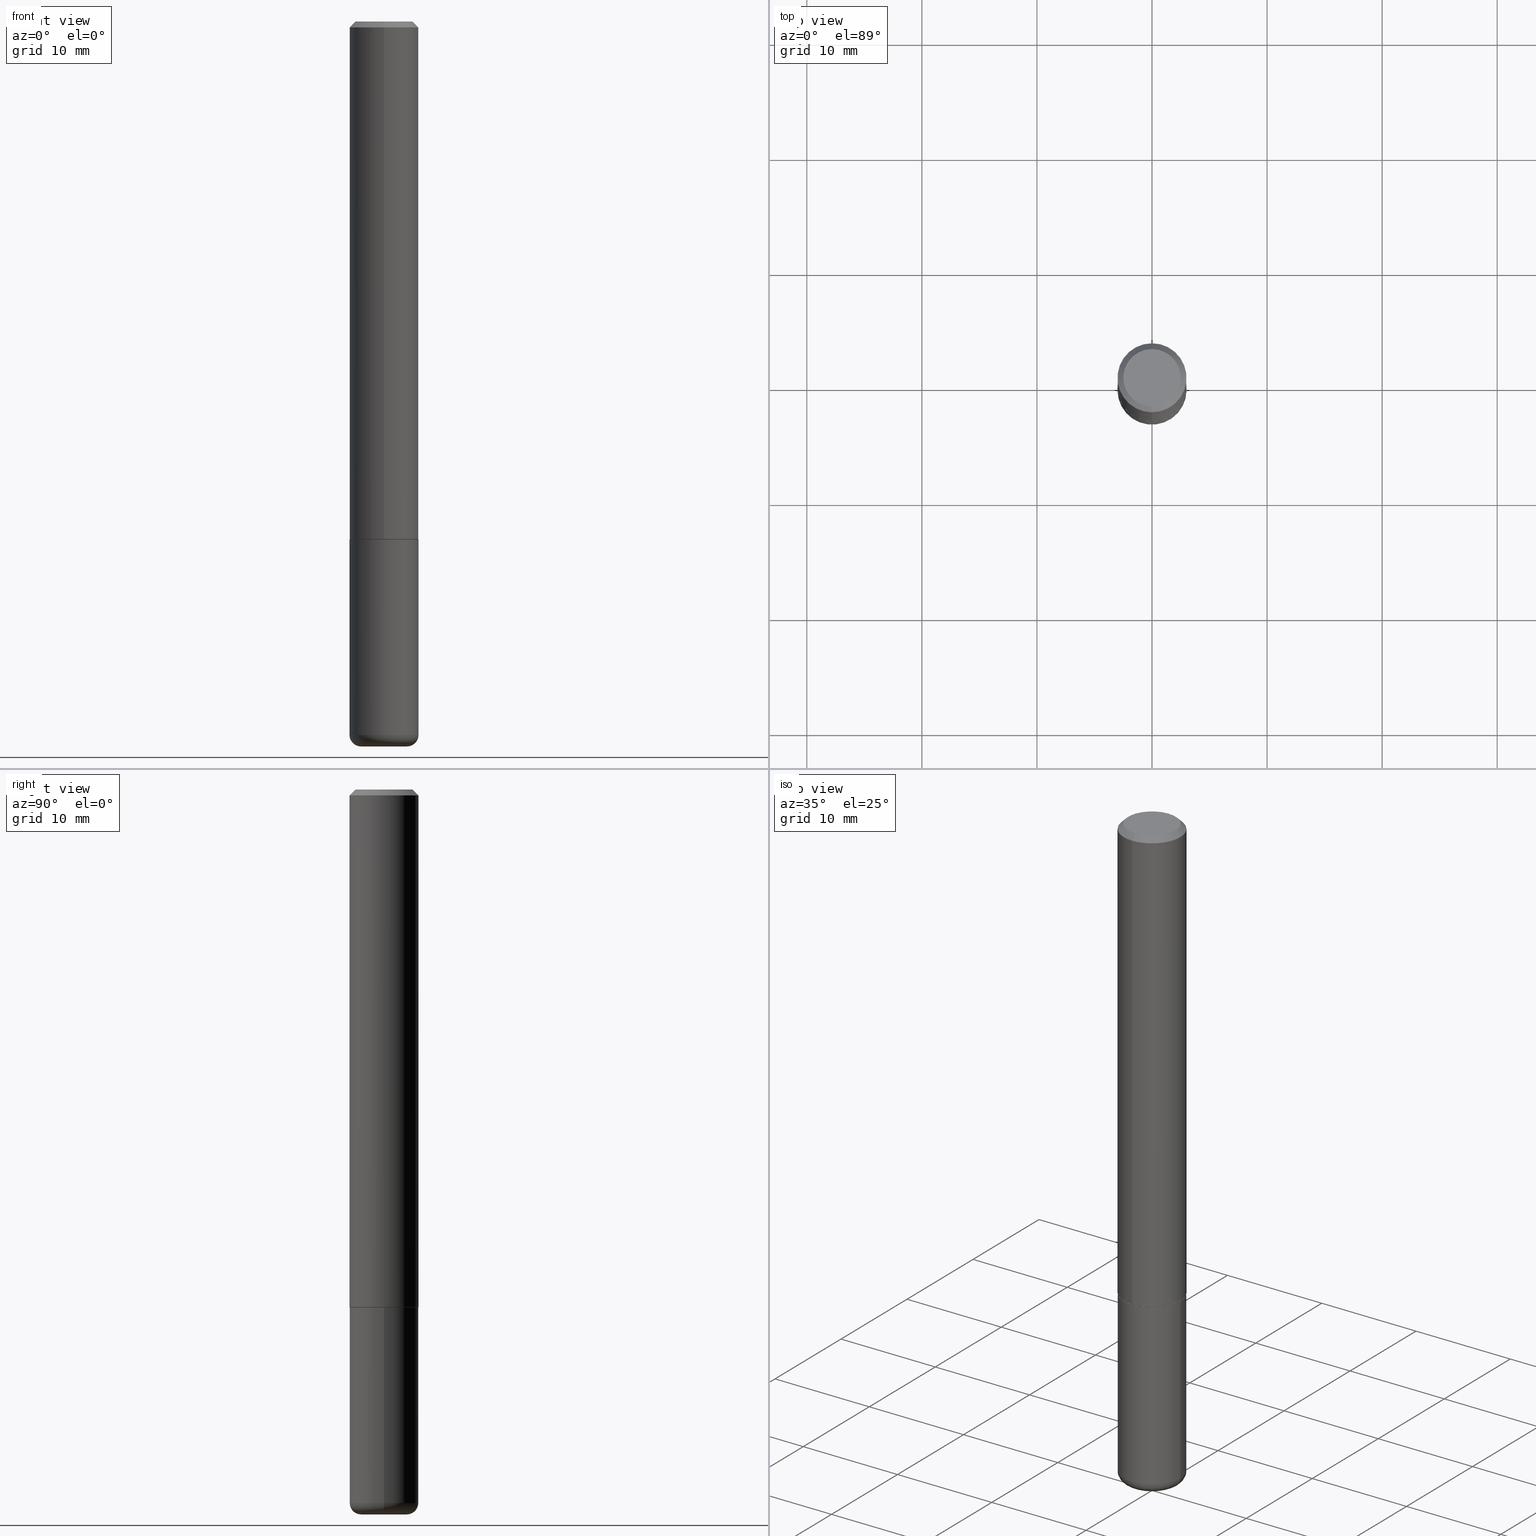
[diagram: canonical four-view strip — front | top / right | iso, engineering-drawing reading convention]
A machine part, canonical four-view strip (front | top / right | iso — engineering-drawing reading convention). The complete STEP part file that produces these views, byte-faithful:
ISO-10303-21;
HEADER;
FILE_DESCRIPTION (( 'STEP AP203' ),
    '1' );
FILE_NAME ('47488.STEP',
    '2024-03-06T02:38:55',
    ( '' ),
    ( '' ),
    'SwSTEP 2.0',
    'SolidWorks 2023',
    '' );
FILE_SCHEMA (( 'CONFIG_CONTROL_DESIGN' ));
ENDSEC;

DATA;
#1 = FACE_OUTER_BOUND ( 'NONE', #196, .T. ) ;
#2 = DIRECTION ( 'NONE',  ( -2.445468806185136597E-29, 3.491481338843145583E-15, 1.000000000000000000 ) ) ;
#3 = VERTEX_POINT ( 'NONE', #37 ) ;
#4 = CALENDAR_DATE ( 2024, 5, 3 ) ;
#5 = AXIS2_PLACEMENT_3D ( 'NONE', #184, #219, #373 ) ;
#6 = ORIENTED_EDGE ( 'NONE', *, *, #379, .F. ) ;
#7 = ADVANCED_FACE ( 'NONE', ( #294 ), #54, .T. ) ;
#8 = DIRECTION ( 'NONE',  ( -6.982962677686265922E-15, -1.000000000000000000, 2.332918867347791121E-15 ) ) ;
#9 = COORDINATED_UNIVERSAL_TIME_OFFSET ( 5, 0, .BEHIND. ) ;
#10 = CARTESIAN_POINT ( 'NONE',  ( 8.391509709327014685E-16, 0.1180999999999940708, -1.770600000000000840 ) ) ;
#11 = ORIENTED_EDGE ( 'NONE', *, *, #58, .T. ) ;
#12 = COORDINATED_UNIVERSAL_TIME_OFFSET ( 5, 0, .BEHIND. ) ;
#13 = UNCERTAINTY_MEASURE_WITH_UNIT (LENGTH_MEASURE( 1.000000000000000082E-05 ), #346, 'distance_accuracy_value', 'NONE');
#14 = CARTESIAN_POINT ( 'NONE',  ( 6.850286386810209760E-16, 0.09809999999999975684, -2.124813316387448711E-16 ) ) ;
#15 = ADVANCED_FACE ( 'NONE', ( #1 ), #144, .F. ) ;
#16 = AXIS2_PLACEMENT_3D ( 'NONE', #50, #158, #155 ) ;
#17 = CALENDAR_DATE ( 2024, 5, 3 ) ;
#18 = CARTESIAN_POINT ( 'NONE',  ( 7.548582654578847672E-16, 0.09809999999999975684, -8.213505744438662948E-17 ) ) ;
#19 = CARTESIAN_POINT ( 'NONE',  ( -0.07870000000000000606, -7.963159666939035753E-15, -2.440900000000000070 ) ) ;
#20 = DIRECTION ( 'NONE',  ( 6.982962677686265922E-15, 1.000000000000000000, -3.494674881071397310E-15 ) ) ;
#21 = DIRECTION ( 'NONE',  ( 1.000000000000000000, -6.982962677686269077E-15, 0.000000000000000000 ) ) ;
#22 = ADVANCED_FACE ( 'NONE', ( #110 ), #233, .F. ) ;
#23 = CARTESIAN_POINT ( 'NONE',  ( 8.246878922347484598E-16, 0.1180999999999999273, -0.02000000000000045838 ) ) ;
#24 = CIRCLE ( 'NONE', #5, 0.1180999999999999966 ) ;
#25 = DIRECTION ( 'NONE',  ( -2.443238767566187138E-29, 3.494674881071396916E-15, 1.000000000000000000 ) ) ;
#26 = DIRECTION ( 'NONE',  ( -2.443238767566187138E-29, 3.494674881071397310E-15, 1.000000000000000000 ) ) ;
#27 = ORIENTED_EDGE ( 'NONE', *, *, #284, .F. ) ;
#28 = CC_DESIGN_APPROVAL ( #49, ( #333 ) ) ;
#29 = ORIENTED_EDGE ( 'NONE', *, *, #295, .T. ) ;
#30 = EDGE_LOOP ( 'NONE', ( #163, #59, #381, #34 ) ) ;
#31 = ADVANCED_FACE ( 'NONE', ( #40 ), #182, .T. ) ;
#32 = VECTOR ( 'NONE', #76, 39.37007874015748143 ) ;
#33 = CIRCLE ( 'NONE', #166, 0.03940000000000005997 ) ;
#34 = ORIENTED_EDGE ( 'NONE', *, *, #374, .F. ) ;
#35 = ORIENTED_EDGE ( 'NONE', *, *, #352, .F. ) ;
#36 = DATE_AND_TIME ( #77, #212 ) ;
#37 = CARTESIAN_POINT ( 'NONE',  ( -8.102248135368172434E-16, -0.1181000000000000660, -0.01999999999999962919 ) ) ;
#38 = EDGE_CURVE ( 'NONE', #99, #292, #113, .T. ) ;
#39 = CIRCLE ( 'NONE', #106, 0.1180999999999999966 ) ;
#40 = FACE_OUTER_BOUND ( 'NONE', #30, .T. ) ;
#41 = CYLINDRICAL_SURFACE ( 'NONE', #141, 0.1180999999999999966 ) ;
#42 = CARTESIAN_POINT ( 'NONE',  ( 6.065496279980994755E-29, -8.659921164732655335E-15, -2.480300000000000171 ) ) ;
#43 = DIRECTION ( 'NONE',  ( -6.982962677686266711E-15, -1.000000000000000000, 3.491481338843145583E-15 ) ) ;
#44 = DIRECTION ( 'NONE',  ( -1.000000000000000000, 7.105427357600990815E-15, 0.000000000000000000 ) ) ;
#45 = DIRECTION ( 'NONE',  ( -6.982962677686265922E-15, -1.000000000000000000, 2.332918867347791121E-15 ) ) ;
#46 = VECTOR ( 'NONE', #121, 39.37007874015748143 ) ;
#47 = FACE_OUTER_BOUND ( 'NONE', #393, .T. ) ;
#48 = CARTESIAN_POINT ( 'NONE',  ( 6.065496279980994755E-29, -8.659921164732655335E-15, -2.480300000000000171 ) ) ;
#49 = APPROVAL ( #319, 'UNSPECIFIED' ) ;
#50 = CARTESIAN_POINT ( 'NONE',  ( 4.325998561852691348E-29, -6.187671344425017014E-15, -1.770600000000000174 ) ) ;
#51 = CARTESIAN_POINT ( 'NONE',  ( -8.102248135368172434E-16, -0.1181000000000000660, -0.01999999999999962919 ) ) ;
#52 = DIRECTION ( 'NONE',  ( 2.438088387897960049E-29, -3.491481338843145188E-15, -1.000000000000000000 ) ) ;
#53 = PERSON_AND_ORGANIZATION ( #380, #237 ) ;
#54 = CONICAL_SURFACE ( 'NONE', #173, 0.1170999999999999958, 0.7853981633975336552 ) ;
#55 = AXIS2_PLACEMENT_3D ( 'NONE', #79, #2, #392 ) ;
#56 = LINE ( 'NONE', #23, #223 ) ;
#57 = CARTESIAN_POINT ( 'NONE',  ( 5.969144809017300159E-29, -8.522356799982234543E-15, -2.440900000000000070 ) ) ;
#58 = EDGE_CURVE ( 'NONE', #283, #254, #357, .T. ) ;
#59 = ORIENTED_EDGE ( 'NONE', *, *, #259, .T. ) ;
#60 = AXIS2_PLACEMENT_3D ( 'NONE', #202, #262, #322 ) ;
#61 = CONICAL_SURFACE ( 'NONE', #197, 0.1180999999999999966, 0.7853981633974469467 ) ;
#62 = ORIENTED_EDGE ( 'NONE', *, *, #105, .T. ) ;
#63 = EDGE_CURVE ( 'NONE', #254, #138, #267, .T. ) ;
#64 = ORIENTED_EDGE ( 'NONE', *, *, #259, .F. ) ;
#65 = DIRECTION ( 'NONE',  ( 0.000000000000000000, 0.000000000000000000, 1.000000000000000000 ) ) ;
#66 = AXIS2_PLACEMENT_3D ( 'NONE', #302, #337, #365 ) ;
#67 = ORIENTED_EDGE ( 'NONE', *, *, #58, .F. ) ;
#68 = APPLICATION_PROTOCOL_DEFINITION ( 'international standard', 'config_control_design', 1994, #83 ) ;
#69 = CC_DESIGN_PERSON_AND_ORGANIZATION_ASSIGNMENT ( #137, #349, ( #263 ) ) ;
#70 = ORIENTED_EDGE ( 'NONE', *, *, #38, .T. ) ;
#71 = DATE_TIME_ROLE ( 'creation_date' ) ;
#72 = ORIENTED_EDGE ( 'NONE', *, *, #129, .T. ) ;
#73 = DIRECTION ( 'NONE',  ( -2.445468806185136597E-29, 3.491481338843145583E-15, 1.000000000000000000 ) ) ;
#74 = CLOSED_SHELL ( 'NONE', ( #7, #317, #31, #345, #132, #98, #22, #253 ) ) ;
#75 = CC_DESIGN_APPROVAL ( #159, ( #277 ) ) ;
#76 = DIRECTION ( 'NONE',  ( -2.445468806185136877E-29, 3.491481338843145188E-15, 1.000000000000000000 ) ) ;
#77 = CALENDAR_DATE ( 2024, 5, 3 ) ;
#78 = PRODUCT_RELATED_PRODUCT_CATEGORY ( 'detail', '', ( #263 ) ) ;
#79 = CARTESIAN_POINT ( 'NONE',  ( 0.000000000000000000, 0.000000000000000000, 0.000000000000000000 ) ) ;
#80 = ORIENTED_EDGE ( 'NONE', *, *, #364, .F. ) ;
#81 = CALENDAR_DATE ( 2024, 5, 3 ) ;
#82 = DIRECTION ( 'NONE',  ( -2.443238767566187138E-29, 3.494674881071396916E-15, 1.000000000000000000 ) ) ;
#83 = APPLICATION_CONTEXT ( 'configuration controlled 3d designs of mechanical parts and assemblies' ) ;
#84 = CARTESIAN_POINT ( 'NONE',  ( -0.1180999999999999966, 8.391509709326782957E-16, -5.809262341591043784E-30 ) ) ;
#85 = APPROVAL_ROLE ( '' ) ;
#86 = CARTESIAN_POINT ( 'NONE',  ( 8.391509709326790846E-16, 0.1181000000000001215, -4.127211034545323724E-16 ) ) ;
#87 = CARTESIAN_POINT ( 'NONE',  ( 8.355982572539216720E-16, 0.1170999999999937924, -1.771600000000000508 ) ) ;
#88 = LOCAL_TIME ( 21, 38, 55.00000000000000000, #391 ) ;
#89 = CARTESIAN_POINT ( 'NONE',  ( 0.1180999999999999966, -7.010196232129265043E-15, -1.771600000000000286 ) ) ;
#90 = EDGE_CURVE ( 'NONE', #138, #418, #154, .T. ) ;
#91 = DIMENSIONAL_EXPONENTS ( 1.000000000000000000, 0.000000000000000000, 0.000000000000000000, 0.000000000000000000, 0.000000000000000000, 0.000000000000000000, 0.000000000000000000 ) ;
#92 = DATE_AND_TIME ( #214, #174 ) ;
#93 = DIRECTION ( 'NONE',  ( -6.982962677686265922E-15, -1.000000000000000000, 2.332918867347791121E-15 ) ) ;
#94 = VECTOR ( 'NONE', #151, 39.37007874015748143 ) ;
#95 = AXIS2_PLACEMENT_3D ( 'NONE', #408, #213, #128 ) ;
#96 = ADVANCED_FACE ( 'NONE', ( #180 ), #335, .T. ) ;
#97 = DIRECTION ( 'NONE',  ( -4.851104656540957175E-15, -0.7071067811865490160, -0.7071067811865460184 ) ) ;
#98 = ADVANCED_FACE ( 'NONE', ( #272 ), #148, .T. ) ;
#99 = VERTEX_POINT ( 'NONE', #270 ) ;
#100 = AXIS2_PLACEMENT_3D ( 'NONE', #175, #82, #261 ) ;
#101 = LOCAL_TIME ( 21, 38, 55.00000000000000000, #12 ) ;
#102 = VERTEX_POINT ( 'NONE', #366 ) ;
#103 = EDGE_LOOP ( 'NONE', ( #313, #255, #62, #285 ) ) ;
#104 = APPLICATION_PROTOCOL_DEFINITION ( 'international standard', 'config_control_design', 1994, #343 ) ;
#105 = EDGE_CURVE ( 'NONE', #161, #102, #156, .T. ) ;
#106 = AXIS2_PLACEMENT_3D ( 'NONE', #320, #181, #177 ) ;
#107 = CARTESIAN_POINT ( 'NONE',  ( 0.000000000000000000, 0.000000000000000000, 0.000000000000000000 ) ) ;
#108 = DIRECTION ( 'NONE',  ( 2.438088387897960049E-29, -3.491481338843145188E-15, -1.000000000000000000 ) ) ;
#109 = CARTESIAN_POINT ( 'NONE',  ( 6.065496279980994755E-29, -8.659921164732655335E-15, -2.480300000000000171 ) ) ;
#110 = FACE_OUTER_BOUND ( 'NONE', #328, .T. ) ;
#111 = CARTESIAN_POINT ( 'NONE',  ( -0.1181000000000000383, -7.683205829049555557E-15, -2.440900000000000070 ) ) ;
#112 = EDGE_CURVE ( 'NONE', #102, #3, #185, .T. ) ;
#113 = LINE ( 'NONE', #235, #32 ) ;
#114 = DIRECTION ( 'NONE',  ( 1.000000000000000000, -6.982962677686265133E-15, 0.000000000000000000 ) ) ;
#115 = AXIS2_PLACEMENT_3D ( 'NONE', #19, #248, #44 ) ;
#116 = CIRCLE ( 'NONE', #309, 0.1170999999999999958 ) ;
#117 = VERTEX_POINT ( 'NONE', #87 ) ;
#118 = COORDINATED_UNIVERSAL_TIME_OFFSET ( 5, 0, .BEHIND. ) ;
#119 = SHAPE_DEFINITION_REPRESENTATION ( #207, #133 ) ;
#120 = CARTESIAN_POINT ( 'NONE',  ( 4.886477535132384121E-31, -6.989349762142808870E-17, -0.02000000000000004205 ) ) ;
#121 = DIRECTION ( 'NONE',  ( -2.443238767566187138E-29, 3.494674881071397310E-15, 1.000000000000000000 ) ) ;
#122 = DIRECTION ( 'NONE',  ( -6.982962677686265922E-15, -1.000000000000000000, 3.494674881071397705E-15 ) ) ;
#123 = FACE_OUTER_BOUND ( 'NONE', #167, .T. ) ;
#124 = AXIS2_PLACEMENT_3D ( 'NONE', #310, #130, #122 ) ;
#125 = DATE_TIME_ROLE ( 'classification_date' ) ;
#126 = DIRECTION ( 'NONE',  ( 1.000000000000000000, -6.982962677686265133E-15, 0.000000000000000000 ) ) ;
#127 = PERSON_AND_ORGANIZATION ( #380, #237 ) ;
#128 = DIRECTION ( 'NONE',  ( -6.982962677686265922E-15, -1.000000000000000000, 3.494674881071396522E-15 ) ) ;
#129 = EDGE_CURVE ( 'NONE', #117, #165, #369, .T. ) ;
#130 = DIRECTION ( 'NONE',  ( -2.443238767566187138E-29, 3.494674881071396916E-15, 1.000000000000000000 ) ) ;
#131 = CIRCLE ( 'NONE', #124, 0.09809999999999975684 ) ;
#132 = ADVANCED_FACE ( 'NONE', ( #123 ), #200, .T. ) ;
#133 = ADVANCED_BREP_SHAPE_REPRESENTATION ( '47488', ( #400, #409, #282 ), #416 ) ;
#134 = EDGE_LOOP ( 'NONE', ( #206, #208, #239, #194 ) ) ;
#135 = AXIS2_PLACEMENT_3D ( 'NONE', #217, #338, #410 ) ;
#136 = EDGE_LOOP ( 'NONE', ( #67, #289 ) ) ;
#137 = PERSON_AND_ORGANIZATION ( #380, #237 ) ;
#138 = VERTEX_POINT ( 'NONE', #111 ) ;
#139 = ORIENTED_EDGE ( 'NONE', *, *, #105, .F. ) ;
#140 =( NAMED_UNIT ( * ) SI_UNIT ( $, .STERADIAN. ) SOLID_ANGLE_UNIT ( ) );
#141 = AXIS2_PLACEMENT_3D ( 'NONE', #107, #269, #363 ) ;
#142 = ORIENTED_EDGE ( 'NONE', *, *, #284, .T. ) ;
#143 = ADVANCED_FACE ( 'NONE', ( #355 ), #276, .T. ) ;
#144 = PLANE ( 'NONE',  #246 ) ;
#145 = APPROVAL_DATE_TIME ( #36, #49 ) ;
#146 = CARTESIAN_POINT ( 'NONE',  ( 4.328441800620257960E-29, -6.191166019306087880E-15, -1.771600000000000286 ) ) ;
#147 = DATE_AND_TIME ( #17, #101 ) ;
#148 = CONICAL_SURFACE ( 'NONE', #372, 0.1170999999999999958, 0.7853981633975336552 ) ;
#149 = CIRCLE ( 'NONE', #66, 0.1181000000000002326 ) ;
#150 = LINE ( 'NONE', #51, #286 ) ;
#151 = DIRECTION ( 'NONE',  ( -2.445468806185136877E-29, 3.491481338843145188E-15, 1.000000000000000000 ) ) ;
#152 = ADVANCED_FACE ( 'NONE', ( #388 ), #41, .T. ) ;
#153 = CARTESIAN_POINT ( 'NONE',  ( -7.416198335591014190E-16, -0.09809999999999975684, 6.035201542218197439E-16 ) ) ;
#154 = LINE ( 'NONE', #84, #94 ) ;
#155 = DIRECTION ( 'NONE',  ( -6.982962677686265922E-15, -1.000000000000000000, 4.626330217890360659E-15 ) ) ;
#156 = LINE ( 'NONE', #397, #228 ) ;
#157 = AXIS2_PLACEMENT_3D ( 'NONE', #109, #257, #210 ) ;
#158 = DIRECTION ( 'NONE',  ( -2.443238767566187138E-29, 3.494674881071396916E-15, 1.000000000000000000 ) ) ;
#159 = APPROVAL ( #266, 'UNSPECIFIED' ) ;
#160 = CARTESIAN_POINT ( 'NONE',  ( 8.246878922347484598E-16, 0.1180999999999999273, -0.02000000000000045838 ) ) ;
#161 = VERTEX_POINT ( 'NONE', #396 ) ;
#162 = CIRCLE ( 'NONE', #157, 0.07870000000000000606 ) ;
#163 = ORIENTED_EDGE ( 'NONE', *, *, #311, .F. ) ;
#164 = EDGE_CURVE ( 'NONE', #415, #3, #39, .T. ) ;
#165 = VERTEX_POINT ( 'NONE', #10 ) ;
#166 = AXIS2_PLACEMENT_3D ( 'NONE', #327, #43, #179 ) ;
#167 = EDGE_LOOP ( 'NONE', ( #27, #281, #342, #225 ) ) ;
#168 = EDGE_LOOP ( 'NONE', ( #353, #389 ) ) ;
#169 = PERSON_AND_ORGANIZATION ( #380, #237 ) ;
#170 = CARTESIAN_POINT ( 'NONE',  ( 5.969144809017300159E-29, -8.522356799982234543E-15, -2.440900000000000070 ) ) ;
#171 = ORIENTED_EDGE ( 'NONE', *, *, #280, .T. ) ;
#172 = ADVANCED_FACE ( 'NONE', ( #264 ), #296, .T. ) ;
#173 = AXIS2_PLACEMENT_3D ( 'NONE', #146, #288, #8 ) ;
#174 = LOCAL_TIME ( 21, 38, 55.00000000000000000, #304 ) ;
#175 = CARTESIAN_POINT ( 'NONE',  ( 0.000000000000000000, 0.000000000000000000, 0.000000000000000000 ) ) ;
#176 = DIRECTION ( 'NONE',  ( 2.443238767566187138E-29, -3.494674881071396916E-15, -1.000000000000000000 ) ) ;
#177 = DIRECTION ( 'NONE',  ( -6.982962677686265922E-15, -1.000000000000000000, 3.505890868245046092E-15 ) ) ;
#178 = ORIENTED_EDGE ( 'NONE', *, *, #187, .F. ) ;
#179 = DIRECTION ( 'NONE',  ( 1.000000000000000000, -6.982962677686267499E-15, 0.000000000000000000 ) ) ;
#180 = FACE_OUTER_BOUND ( 'NONE', #136, .T. ) ;
#181 = DIRECTION ( 'NONE',  ( -2.443238767566187138E-29, 3.494674881071396916E-15, 1.000000000000000000 ) ) ;
#182 = CONICAL_SURFACE ( 'NONE', #404, 0.1180999999999999966, 0.7853981633974469467 ) ;
#183 = EDGE_CURVE ( 'NONE', #254, #283, #162, .T. ) ;
#184 = CARTESIAN_POINT ( 'NONE',  ( 5.969144809017300159E-29, -8.522356799982234543E-15, -2.440900000000000070 ) ) ;
#185 = LINE ( 'NONE', #274, #46 ) ;
#186 = CARTESIAN_POINT ( 'NONE',  ( 0.07870000000000000606, -9.209480327466565169E-15, -2.480300000000000171 ) ) ;
#187 = EDGE_CURVE ( 'NONE', #292, #418, #339, .T. ) ;
#188 = DIRECTION ( 'NONE',  ( -2.445468806185136597E-29, 3.491481338843145583E-15, 1.000000000000000000 ) ) ;
#189 = PERSON_AND_ORGANIZATION ( #380, #237 ) ;
#190 = DIRECTION ( 'NONE',  ( 4.937700262164540942E-15, 0.7071067811865441310, -0.7071067811865509034 ) ) ;
#191 = ORIENTED_EDGE ( 'NONE', *, *, #112, .F. ) ;
#192 = CC_DESIGN_DATE_AND_TIME_ASSIGNMENT ( #147, #125, ( #277 ) ) ;
#193 = AXIS2_PLACEMENT_3D ( 'NONE', #406, #188, #126 ) ;
#194 = ORIENTED_EDGE ( 'NONE', *, *, #295, .F. ) ;
#195 = LENGTH_MEASURE_WITH_UNIT ( LENGTH_MEASURE( 0.02539999999999999897 ), #376 );
#196 = EDGE_LOOP ( 'NONE', ( #287, #260 ) ) ;
#197 = AXIS2_PLACEMENT_3D ( 'NONE', #120, #306, #402 ) ;
#198 = EDGE_LOOP ( 'NONE', ( #348, #29, #70, #411 ) ) ;
#199 = PERSON_AND_ORGANIZATION ( #380, #237 ) ;
#200 = CYLINDRICAL_SURFACE ( 'NONE', #100, 0.1181000000000001215 ) ;
#201 = EDGE_LOOP ( 'NONE', ( #171, #316, #178, #378 ) ) ;
#202 = CARTESIAN_POINT ( 'NONE',  ( 4.328441800620257960E-29, -6.191166019306087880E-15, -1.771600000000000286 ) ) ;
#203 = DIRECTION ( 'NONE',  ( 1.000000000000000000, 0.000000000000000000, 0.000000000000000000 ) ) ;
#204 = PRODUCT_DEFINITION_FORMATION_WITH_SPECIFIED_SOURCE ( 'ANY', '', #263, .NOT_KNOWN. ) ;
#205 = DIRECTION ( 'NONE',  ( 1.000000000000000000, -6.982962677686269077E-15, 4.883557194083113462E-29 ) ) ;
#206 = ORIENTED_EDGE ( 'NONE', *, *, #63, .F. ) ;
#207 = PRODUCT_DEFINITION_SHAPE ( 'NONE', 'NONE',  #333 ) ;
#208 = ORIENTED_EDGE ( 'NONE', *, *, #183, .T. ) ;
#209 = APPROVAL_DATE_TIME ( #245, #159 ) ;
#210 = DIRECTION ( 'NONE',  ( 1.000000000000000000, -6.982962677686269077E-15, 0.000000000000000000 ) ) ;
#211 = DIRECTION ( 'NONE',  ( 2.443238767566186578E-29, -3.494674881071397310E-15, -1.000000000000000000 ) ) ;
#212 = LOCAL_TIME ( 21, 38, 55.00000000000000000, #9 ) ;
#213 = DIRECTION ( 'NONE',  ( -2.443238767566187138E-29, 3.494674881071396916E-15, 1.000000000000000000 ) ) ;
#214 = CALENDAR_DATE ( 2024, 5, 3 ) ;
#215 = CYLINDRICAL_SURFACE ( 'NONE', #95, 0.1181000000000001215 ) ;
#216 = PERSON_AND_ORGANIZATION ( #380, #237 ) ;
#217 = CARTESIAN_POINT ( 'NONE',  ( 4.886477535132384121E-31, -6.989349762142808870E-17, -0.02000000000000004205 ) ) ;
#218 = AXIS2_PLACEMENT_3D ( 'NONE', #301, #278, #332 ) ;
#219 = DIRECTION ( 'NONE',  ( -2.445468806185136597E-29, 3.491481338843145583E-15, 1.000000000000000000 ) ) ;
#220 = EDGE_CURVE ( 'NONE', #161, #117, #116, .T. ) ;
#221 = AXIS2_PLACEMENT_3D ( 'NONE', #48, #52, #307 ) ;
#222 = ORIENTED_EDGE ( 'NONE', *, *, #352, .T. ) ;
#223 = VECTOR ( 'NONE', #190, 39.37007874015748143 ) ;
#224 = CC_DESIGN_PERSON_AND_ORGANIZATION_ASSIGNMENT ( #189, #330, ( #277 ) ) ;
#225 = ORIENTED_EDGE ( 'NONE', *, *, #164, .F. ) ;
#226 = CARTESIAN_POINT ( 'NONE',  ( 0.000000000000000000, 0.000000000000000000, 0.000000000000000000 ) ) ;
#227 = ORIENTED_EDGE ( 'NONE', *, *, #374, .T. ) ;
#228 = VECTOR ( 'NONE', #401, 39.37007874015748143 ) ;
#229 = CIRCLE ( 'NONE', #135, 0.1180999999999999966 ) ;
#230 = CARTESIAN_POINT ( 'NONE',  ( 4.328441800620257960E-29, -6.191166019306087880E-15, -1.771600000000000286 ) ) ;
#231 = DIRECTION ( 'NONE',  ( -1.000000000000000000, 6.982962677686265922E-15, -4.876176775795935793E-29 ) ) ;
#232 = EDGE_CURVE ( 'NONE', #283, #99, #33, .T. ) ;
#233 = PLANE ( 'NONE',  #60 ) ;
#234 = APPROVAL_ROLE ( '' ) ;
#235 = CARTESIAN_POINT ( 'NONE',  ( 0.1180999999999999966, -8.246878922347480654E-16, 5.758764772215000440E-30 ) ) ;
#236 = CLOSED_SHELL ( 'NONE', ( #172, #305, #15, #152, #143, #96 ) ) ;
#237 = ORGANIZATION ( 'UNSPECIFIED', 'UNSPECIFIED', '' ) ;
#238 = DIRECTION ( 'NONE',  ( -2.443238767566187138E-29, 3.494674881071396916E-15, 1.000000000000000000 ) ) ;
#239 = ORIENTED_EDGE ( 'NONE', *, *, #232, .T. ) ;
#240 = PERSON_AND_ORGANIZATION_ROLE ( 'design_supplier' ) ;
#241 = APPROVAL ( #249, 'UNSPECIFIED' ) ;
#242 = PERSON_AND_ORGANIZATION ( #380, #237 ) ;
#243 = FACE_OUTER_BOUND ( 'NONE', #312, .T. ) ;
#244 = DIRECTION ( 'NONE',  ( -2.443238767566187138E-29, 3.494674881071396916E-15, 1.000000000000000000 ) ) ;
#245 = DATE_AND_TIME ( #81, #377 ) ;
#246 = AXIS2_PLACEMENT_3D ( 'NONE', #384, #108, #231 ) ;
#247 = CARTESIAN_POINT ( 'NONE',  ( -0.1180999999999999966, -6.514781599005697070E-15, -1.771600000000000286 ) ) ;
#248 = DIRECTION ( 'NONE',  ( 7.105427357601001859E-15, 1.000000000000000000, -3.491481338843145583E-15 ) ) ;
#249 = APPROVAL_STATUS ( 'not_yet_approved' ) ;
#250 = CARTESIAN_POINT ( 'NONE',  ( 4.328441800620257960E-29, -6.191166019306087880E-15, -1.771600000000000286 ) ) ;
#251 = CARTESIAN_POINT ( 'NONE',  ( -0.07870000000000000606, -7.891964930369505262E-15, -2.480300000000000171 ) ) ;
#252 = AXIS2_PLACEMENT_3D ( 'NONE', #57, #275, #371 ) ;
#253 = ADVANCED_FACE ( 'NONE', ( #298 ), #329, .F. ) ;
#254 = VERTEX_POINT ( 'NONE', #251 ) ;
#255 = ORIENTED_EDGE ( 'NONE', *, *, #364, .T. ) ;
#256 = CC_DESIGN_APPROVAL ( #241, ( #204 ) ) ;
#257 = DIRECTION ( 'NONE',  ( -2.445468806185136597E-29, 3.491481338843145583E-15, 1.000000000000000000 ) ) ;
#258 = EDGE_LOOP ( 'NONE', ( #344, #72, #35, #139 ) ) ;
#259 = EDGE_CURVE ( 'NONE', #360, #3, #150, .T. ) ;
#260 = ORIENTED_EDGE ( 'NONE', *, *, #398, .T. ) ;
#261 = DIRECTION ( 'NONE',  ( -6.982962677686265922E-15, -1.000000000000000000, 3.494674881071396522E-15 ) ) ;
#262 = DIRECTION ( 'NONE',  ( -2.443238767566186578E-29, 3.494674881071397310E-15, 1.000000000000000000 ) ) ;
#263 = PRODUCT ( '47488', '47488', '', ( #386 ) ) ;
#264 = FACE_OUTER_BOUND ( 'NONE', #201, .T. ) ;
#265 = ORIENTED_EDGE ( 'NONE', *, *, #280, .F. ) ;
#266 = APPROVAL_STATUS ( 'not_yet_approved' ) ;
#267 = CIRCLE ( 'NONE', #115, 0.03940000000000005997 ) ;
#268 = AXIS2_PLACEMENT_3D ( 'NONE', #368, #25, #271 ) ;
#269 = DIRECTION ( 'NONE',  ( -2.445468806185136597E-29, 3.491481338843145583E-15, 1.000000000000000000 ) ) ;
#270 = CARTESIAN_POINT ( 'NONE',  ( 0.1181000000000000383, -9.347044692216982806E-15, -2.440900000000000070 ) ) ;
#271 = DIRECTION ( 'NONE',  ( -6.982962677686265922E-15, -1.000000000000000000, 3.494674881071397705E-15 ) ) ;
#272 = FACE_OUTER_BOUND ( 'NONE', #103, .T. ) ;
#273 = DIRECTION ( 'NONE',  ( -2.443238767566187138E-29, 3.494674881071396916E-15, 1.000000000000000000 ) ) ;
#274 = CARTESIAN_POINT ( 'NONE',  ( -8.246878922347488542E-16, -0.1181000000000001215, 4.127211034545323724E-16 ) ) ;
#275 = DIRECTION ( 'NONE',  ( -2.445468806185136597E-29, 3.491481338843145583E-15, 1.000000000000000000 ) ) ;
#276 = TOROIDAL_SURFACE ( 'NONE', #323, 0.07870000000000000606, 0.03940000000000005997 ) ;
#277 = SECURITY_CLASSIFICATION ( '', '', #361 ) ;
#278 = DIRECTION ( 'NONE',  ( -2.445468806185136597E-29, 3.491481338843145583E-15, 1.000000000000000000 ) ) ;
#279 = LINE ( 'NONE', #86, #293 ) ;
#280 = EDGE_CURVE ( 'NONE', #99, #138, #24, .T. ) ;
#281 = ORIENTED_EDGE ( 'NONE', *, *, #290, .T. ) ;
#282 = AXIS2_PLACEMENT_3D ( 'NONE', #226, #65, #203 ) ;
#283 = VERTEX_POINT ( 'NONE', #186 ) ;
#284 = EDGE_CURVE ( 'NONE', #165, #415, #279, .T. ) ;
#285 = ORIENTED_EDGE ( 'NONE', *, *, #290, .F. ) ;
#286 = VECTOR ( 'NONE', #97, 39.37007874015748143 ) ;
#287 = ORIENTED_EDGE ( 'NONE', *, *, #187, .T. ) ;
#288 = DIRECTION ( 'NONE',  ( -2.443238767566187138E-29, 3.494674881071396916E-15, 1.000000000000000000 ) ) ;
#289 = ORIENTED_EDGE ( 'NONE', *, *, #183, .F. ) ;
#290 = EDGE_CURVE ( 'NONE', #165, #102, #394, .T. ) ;
#291 = PERSON_AND_ORGANIZATION_ROLE ( 'creator' ) ;
#292 = VERTEX_POINT ( 'NONE', #89 ) ;
#293 = VECTOR ( 'NONE', #26, 39.37007874015748143 ) ;
#294 = FACE_OUTER_BOUND ( 'NONE', #258, .T. ) ;
#295 = EDGE_CURVE ( 'NONE', #138, #99, #358, .T. ) ;
#296 = CYLINDRICAL_SURFACE ( 'NONE', #55, 0.1180999999999999966 ) ;
#297 = DIRECTION ( 'NONE',  ( -2.445468806185136597E-29, 3.491481338843145583E-15, 1.000000000000000000 ) ) ;
#298 = FACE_OUTER_BOUND ( 'NONE', #168, .T. ) ;
#299 = CARTESIAN_POINT ( 'NONE',  ( 4.328441800620257960E-29, -6.191166019306087880E-15, -1.771600000000000286 ) ) ;
#300 = AXIS2_PLACEMENT_3D ( 'NONE', #250, #273, #93 ) ;
#301 = CARTESIAN_POINT ( 'NONE',  ( 5.969144809017300159E-29, -8.522356799982234543E-15, -2.440900000000000070 ) ) ;
#302 = CARTESIAN_POINT ( 'NONE',  ( 4.325998561852691348E-29, -6.187671344425017014E-15, -1.770600000000000174 ) ) ;
#303 = CARTESIAN_POINT ( 'NONE',  ( 8.320455435751204777E-16, 0.1170999999999937924, -1.771600000000000508 ) ) ;
#304 = COORDINATED_UNIVERSAL_TIME_OFFSET ( 5, 0, .BEHIND. ) ;
#305 = ADVANCED_FACE ( 'NONE', ( #47 ), #383, .T. ) ;
#306 = DIRECTION ( 'NONE',  ( 2.443238767566187138E-29, -3.494674881071396916E-15, -1.000000000000000000 ) ) ;
#307 = DIRECTION ( 'NONE',  ( -1.000000000000000000, 6.982962677686265922E-15, -4.876176775795935793E-29 ) ) ;
#308 = AXIS2_PLACEMENT_3D ( 'NONE', #42, #297, #21 ) ;
#309 = AXIS2_PLACEMENT_3D ( 'NONE', #230, #238, #359 ) ;
#310 = CARTESIAN_POINT ( 'NONE',  ( -6.369341406389364514E-45, 9.110357005365375257E-31, 2.606925483887165818E-16 ) ) ;
#311 = EDGE_CURVE ( 'NONE', #360, #318, #405, .T. ) ;
#312 = EDGE_LOOP ( 'NONE', ( #222, #142, #340, #191 ) ) ;
#313 = ORIENTED_EDGE ( 'NONE', *, *, #129, .F. ) ;
#314 = CC_DESIGN_DATE_AND_TIME_ASSIGNMENT ( #350, #71, ( #333 ) ) ;
#315 = VECTOR ( 'NONE', #403, 39.37007874015748143 ) ;
#316 = ORIENTED_EDGE ( 'NONE', *, *, #90, .T. ) ;
#317 = ADVANCED_FACE ( 'NONE', ( #243 ), #215, .T. ) ;
#318 = VERTEX_POINT ( 'NONE', #18 ) ;
#319 = APPROVAL_STATUS ( 'not_yet_approved' ) ;
#320 = CARTESIAN_POINT ( 'NONE',  ( 4.886477535132384121E-31, -6.989349762142808870E-17, -0.02000000000000004205 ) ) ;
#321 = ORIENTED_EDGE ( 'NONE', *, *, #164, .T. ) ;
#322 = DIRECTION ( 'NONE',  ( -6.982962677686265922E-15, -1.000000000000000000, 3.494674881071397310E-15 ) ) ;
#323 = AXIS2_PLACEMENT_3D ( 'NONE', #170, #73, #205 ) ;
#324 = CC_DESIGN_PERSON_AND_ORGANIZATION_ASSIGNMENT ( #53, #240, ( #204 ) ) ;
#325 = APPROVAL_PERSON_ORGANIZATION ( #242, #159, #395 ) ;
#326 = ORIENTED_EDGE ( 'NONE', *, *, #232, .F. ) ;
#327 = CARTESIAN_POINT ( 'NONE',  ( 0.07870000000000000606, -9.071915962716144377E-15, -2.440900000000000070 ) ) ;
#328 = EDGE_LOOP ( 'NONE', ( #413, #80 ) ) ;
#329 = PLANE ( 'NONE',  #417 ) ;
#330 = PERSON_AND_ORGANIZATION_ROLE ( 'classification_officer' ) ;
#331 = AXIS2_PLACEMENT_3D ( 'NONE', #351, #382, #114 ) ;
#332 = DIRECTION ( 'NONE',  ( 1.000000000000000000, -6.982962677686269077E-15, 4.883557194083113462E-29 ) ) ;
#333 = PRODUCT_DEFINITION ( 'UNKNOWN', '', #204, #362 ) ;
#334 = APPROVAL_DATE_TIME ( #92, #241 ) ;
#335 = PLANE ( 'NONE',  #221 ) ;
#336 = PERSON_AND_ORGANIZATION_ROLE ( 'creator' ) ;
#337 = DIRECTION ( 'NONE',  ( -2.443238767566187138E-29, 3.494674881071396916E-15, 1.000000000000000000 ) ) ;
#338 = DIRECTION ( 'NONE',  ( -2.443238767566187138E-29, 3.494674881071396916E-15, 1.000000000000000000 ) ) ;
#339 = CIRCLE ( 'NONE', #331, 0.1180999999999999966 ) ;
#340 = ORIENTED_EDGE ( 'NONE', *, *, #370, .F. ) ;
#341 = APPROVAL_PERSON_ORGANIZATION ( #127, #241, #85 ) ;
#342 = ORIENTED_EDGE ( 'NONE', *, *, #112, .T. ) ;
#343 = APPLICATION_CONTEXT ( 'configuration controlled 3d designs of mechanical parts and assemblies' ) ;
#344 = ORIENTED_EDGE ( 'NONE', *, *, #220, .T. ) ;
#345 = ADVANCED_FACE ( 'NONE', ( #399 ), #61, .T. ) ;
#346 =( CONVERSION_BASED_UNIT ( 'INCH', #195 ) LENGTH_UNIT ( ) NAMED_UNIT ( #91 ) );
#347 = CIRCLE ( 'NONE', #193, 0.1180999999999999966 ) ;
#348 = ORIENTED_EDGE ( 'NONE', *, *, #90, .F. ) ;
#349 = PERSON_AND_ORGANIZATION_ROLE ( 'design_owner' ) ;
#350 = DATE_AND_TIME ( #4, #88 ) ;
#351 = CARTESIAN_POINT ( 'NONE',  ( 4.332392537037588763E-29, -6.185508339894517569E-15, -1.771600000000000286 ) ) ;
#352 = EDGE_CURVE ( 'NONE', #102, #165, #149, .T. ) ;
#353 = ORIENTED_EDGE ( 'NONE', *, *, #379, .T. ) ;
#354 =( NAMED_UNIT ( * ) PLANE_ANGLE_UNIT ( ) SI_UNIT ( $, .RADIAN. ) );
#355 = FACE_OUTER_BOUND ( 'NONE', #134, .T. ) ;
#356 = CARTESIAN_POINT ( 'NONE',  ( 4.886477535132384121E-31, -6.989349762142808870E-17, -0.02000000000000004205 ) ) ;
#357 = CIRCLE ( 'NONE', #308, 0.07870000000000000606 ) ;
#358 = CIRCLE ( 'NONE', #252, 0.1180999999999999966 ) ;
#359 = DIRECTION ( 'NONE',  ( -6.982962677686265922E-15, -1.000000000000000000, 2.332918867347791121E-15 ) ) ;
#360 = VERTEX_POINT ( 'NONE', #153 ) ;
#361 = SECURITY_CLASSIFICATION_LEVEL ( 'unclassified' ) ;
#362 = DESIGN_CONTEXT ( 'detailed design', #83, 'design' ) ;
#363 = DIRECTION ( 'NONE',  ( 1.000000000000000000, -6.982962677686266711E-15, 4.876176775795936353E-29 ) ) ;
#364 = EDGE_CURVE ( 'NONE', #117, #161, #367, .T. ) ;
#365 = DIRECTION ( 'NONE',  ( -6.982962677686265922E-15, -1.000000000000000000, 4.626330217890360659E-15 ) ) ;
#366 = CARTESIAN_POINT ( 'NONE',  ( -8.246878922347063544E-16, -0.1181000000000064221, -1.770599999999999730 ) ) ;
#367 = CIRCLE ( 'NONE', #300, 0.1170999999999999958 ) ;
#368 = CARTESIAN_POINT ( 'NONE',  ( -6.369341406389364514E-45, 9.110357005365375257E-31, 2.606925483887165818E-16 ) ) ;
#369 = LINE ( 'NONE', #303, #315 ) ;
#370 = EDGE_CURVE ( 'NONE', #3, #415, #229, .T. ) ;
#371 = DIRECTION ( 'NONE',  ( 1.000000000000000000, -6.982962677686273021E-15, 0.000000000000000000 ) ) ;
#372 = AXIS2_PLACEMENT_3D ( 'NONE', #299, #244, #45 ) ;
#373 = DIRECTION ( 'NONE',  ( 1.000000000000000000, -6.982962677686273021E-15, 0.000000000000000000 ) ) ;
#374 = EDGE_CURVE ( 'NONE', #318, #415, #56, .T. ) ;
#375 = EDGE_LOOP ( 'NONE', ( #64, #6, #227, #321 ) ) ;
#376 =( LENGTH_UNIT ( ) NAMED_UNIT ( * ) SI_UNIT ( $, .METRE. ) );
#377 = LOCAL_TIME ( 21, 38, 55.00000000000000000, #118 ) ;
#378 = ORIENTED_EDGE ( 'NONE', *, *, #38, .F. ) ;
#379 = EDGE_CURVE ( 'NONE', #318, #360, #131, .T. ) ;
#380 = PERSON ( 'UNSPECIFIED', 'UNSPECIFIED', 'UNSPECIFIED', ('UNSPECIFIED'), ('UNSPECIFIED'), ('UNSPECIFIED') ) ;
#381 = ORIENTED_EDGE ( 'NONE', *, *, #370, .T. ) ;
#382 = DIRECTION ( 'NONE',  ( -2.445468806185136597E-29, 3.491481338843145583E-15, 1.000000000000000000 ) ) ;
#383 = TOROIDAL_SURFACE ( 'NONE', #218, 0.07870000000000000606, 0.03940000000000005997 ) ;
#384 = CARTESIAN_POINT ( 'NONE',  ( 4.332392537037588763E-29, -6.185508339894517569E-15, -1.771600000000000286 ) ) ;
#385 = CC_DESIGN_SECURITY_CLASSIFICATION ( #277, ( #204 ) ) ;
#386 = MECHANICAL_CONTEXT ( 'NONE', #343, 'mechanical' ) ;
#387 = CC_DESIGN_PERSON_AND_ORGANIZATION_ASSIGNMENT ( #169, #291, ( #333 ) ) ;
#388 = FACE_OUTER_BOUND ( 'NONE', #198, .T. ) ;
#389 = ORIENTED_EDGE ( 'NONE', *, *, #311, .T. ) ;
#390 = DIRECTION ( 'NONE',  ( 6.982962677686265922E-15, 1.000000000000000000, -3.505890868245046092E-15 ) ) ;
#391 = COORDINATED_UNIVERSAL_TIME_OFFSET ( 5, 0, .BEHIND. ) ;
#392 = DIRECTION ( 'NONE',  ( 1.000000000000000000, -6.982962677686266711E-15, 4.876176775795936353E-29 ) ) ;
#393 = EDGE_LOOP ( 'NONE', ( #11, #414, #265, #326 ) ) ;
#394 = CIRCLE ( 'NONE', #16, 0.1181000000000002326 ) ;
#395 = APPROVAL_ROLE ( '' ) ;
#396 = CARTESIAN_POINT ( 'NONE',  ( -8.177049295570184665E-16, -0.1171000000000061991, -1.771600000000000064 ) ) ;
#397 = CARTESIAN_POINT ( 'NONE',  ( -8.177049295570184665E-16, -0.1171000000000061991, -1.771600000000000064 ) ) ;
#398 = EDGE_CURVE ( 'NONE', #418, #292, #347, .T. ) ;
#399 = FACE_OUTER_BOUND ( 'NONE', #375, .T. ) ;
#400 = MANIFOLD_SOLID_BREP ( 'Body-Move/Copy2[1]', #236 ) ;
#401 = DIRECTION ( 'NONE',  ( -4.937700262164969294E-15, -0.7071067811866054154, 0.7071067811864896191 ) ) ;
#402 = DIRECTION ( 'NONE',  ( 6.982962677686265922E-15, 1.000000000000000000, -3.505890868245046092E-15 ) ) ;
#403 = DIRECTION ( 'NONE',  ( 5.024295867788490741E-15, 0.7071067811866103003, 0.7071067811864847341 ) ) ;
#404 = AXIS2_PLACEMENT_3D ( 'NONE', #356, #176, #390 ) ;
#405 = CIRCLE ( 'NONE', #268, 0.09809999999999975684 ) ;
#406 = CARTESIAN_POINT ( 'NONE',  ( 4.332392537037588763E-29, -6.185508339894517569E-15, -1.771600000000000286 ) ) ;
#407 = CC_DESIGN_PERSON_AND_ORGANIZATION_ASSIGNMENT ( #216, #336, ( #204 ) ) ;
#408 = CARTESIAN_POINT ( 'NONE',  ( 0.000000000000000000, 0.000000000000000000, 0.000000000000000000 ) ) ;
#409 = MANIFOLD_SOLID_BREP ( 'Body-Move/Copy2[2]', #74 ) ;
#410 = DIRECTION ( 'NONE',  ( -6.982962677686265922E-15, -1.000000000000000000, 3.505890868245046092E-15 ) ) ;
#411 = ORIENTED_EDGE ( 'NONE', *, *, #398, .F. ) ;
#412 = APPROVAL_PERSON_ORGANIZATION ( #199, #49, #234 ) ;
#413 = ORIENTED_EDGE ( 'NONE', *, *, #220, .F. ) ;
#414 = ORIENTED_EDGE ( 'NONE', *, *, #63, .T. ) ;
#415 = VERTEX_POINT ( 'NONE', #160 ) ;
#416 =( GEOMETRIC_REPRESENTATION_CONTEXT ( 3 ) GLOBAL_UNCERTAINTY_ASSIGNED_CONTEXT ( ( #13 ) ) GLOBAL_UNIT_ASSIGNED_CONTEXT ( ( #346, #354, #140 ) ) REPRESENTATION_CONTEXT ( 'NONE', 'WORKASPACE' ) );
#417 = AXIS2_PLACEMENT_3D ( 'NONE', #14, #211, #20 ) ;
#418 = VERTEX_POINT ( 'NONE', #247 ) ;
ENDSEC;
END-ISO-10303-21;
